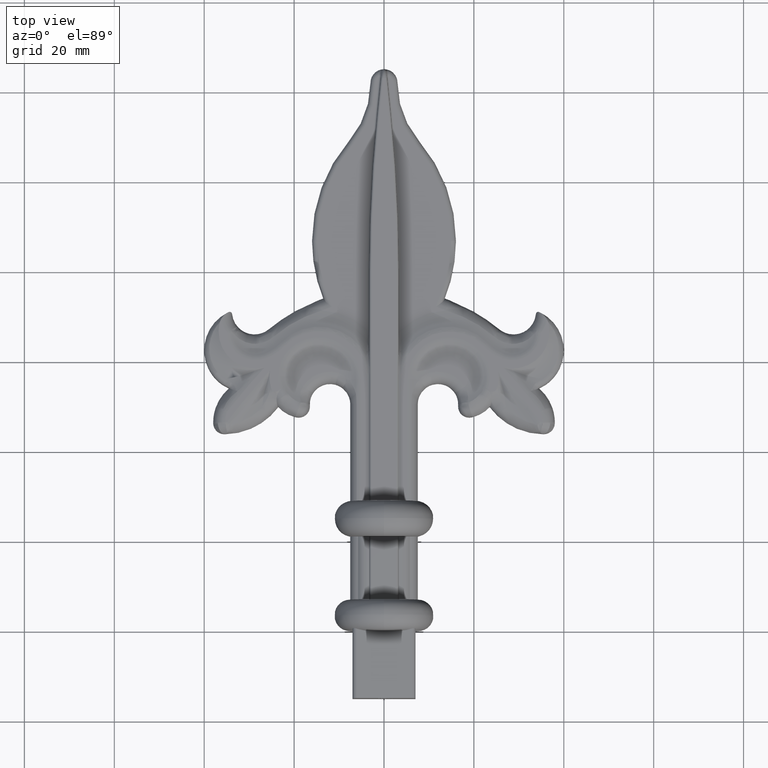
[diagram: clean part render]
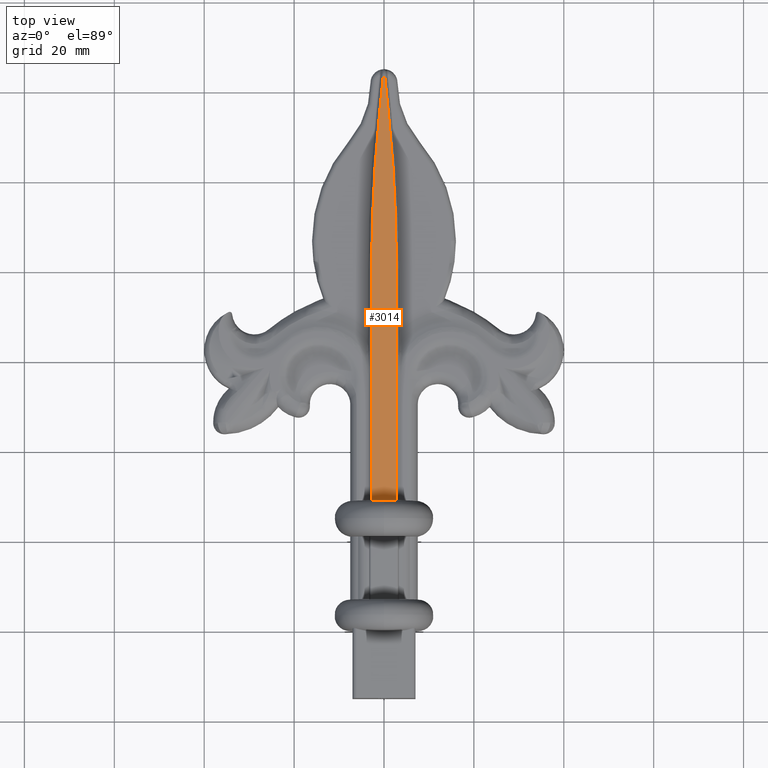
[diagram: same view with one face highlighted and labeled with its STEP entity id]
A machine part, top view. The second image highlights one B-rep face of the part: STEP entity #3014.
In plain terms, the highlighted planar face has unit normal (0, 0, 1).
Its self-contained STEP definition (entity closure, byte-faithful):
#135 = DIRECTION ( 'NONE',  ( 0.09981191532845422321, 0.9950063223711019811, 0.000000000000000000 ) ) ;
#317 = DIRECTION ( 'NONE',  ( 0.000000000000000000, 0.000000000000000000, 1.000000000000000000 ) ) ;
#789 = DIRECTION ( 'NONE',  ( -0.09981191532845422321, 0.9950063223711019811, 0.000000000000000000 ) ) ;
#1095 = DIRECTION ( 'NONE',  ( -1.000000000000000000, 0.000000000000000000, 0.000000000000000000 ) ) ;
#1248 = AXIS2_PLACEMENT_3D ( 'NONE', #18350, #12167, #1095 ) ;
#1324 = ORIENTED_EDGE ( 'NONE', *, *, #28687, .T. ) ;
#1903 = EDGE_CURVE ( 'NONE', #6429, #21993, #15595, .T. ) ;
#2247 = ORIENTED_EDGE ( 'NONE', *, *, #12657, .T. ) ;
#2476 = LINE ( 'NONE', #23284, #27558 ) ;
#2721 = FACE_OUTER_BOUND ( 'NONE', #12496, .T. ) ;
#3014 = ADVANCED_FACE ( 'NONE', ( #2721 ), #24623, .T. ) ;
#3017 = CARTESIAN_POINT ( 'NONE',  ( -0.1958383187995045849, 122.9807466314520212, 5.000000000000000888 ) ) ;
#3048 = CARTESIAN_POINT ( 'NONE',  ( 0.2304507295558823610, 122.6357042169481986, 5.000000000000000000 ) ) ;
#3820 = B_SPLINE_CURVE_WITH_KNOTS ( 'NONE', 3,
 ( #26889, #20332, #7009, #11483 ),
 .UNSPECIFIED., .F., .F.,
 ( 4, 4 ),
 ( 0.7593153901365838898, 1.000000000000000000 ),
 .UNSPECIFIED. ) ;
#4140 = ORIENTED_EDGE ( 'NONE', *, *, #19401, .T. ) ;
#4197 = VERTEX_POINT ( 'NONE', #23011 ) ;
#4381 = VECTOR ( 'NONE', #7377, 1000.000000000000000 ) ;
#5082 = AXIS2_PLACEMENT_3D ( 'NONE', #13505, #317, #15476 ) ;
#5440 = CARTESIAN_POINT ( 'NONE',  ( 0.000000000000000000, 122.9999890824078506, 5.000000000000000000 ) ) ;
#5603 = EDGE_CURVE ( 'NONE', #7667, #28474, #2476, .T. ) ;
#5804 = LINE ( 'NONE', #25201, #4381 ) ;
#6429 = VERTEX_POINT ( 'NONE', #27719 ) ;
#6644 = ORIENTED_EDGE ( 'NONE', *, *, #5603, .F. ) ;
#6693 = VECTOR ( 'NONE', #22706, 1000.000000000000000 ) ;
#7009 = CARTESIAN_POINT ( 'NONE',  ( 0.06684896866851157415, 122.9999567602996962, 5.000000000000000000 ) ) ;
#7133 = CARTESIAN_POINT ( 'NONE',  ( 0.000000000000000000, 29.00000000000000000, 5.000000000000000000 ) ) ;
#7377 = DIRECTION ( 'NONE',  ( 1.188166764367675911E-17, 1.000000000000000000, -0.000000000000000000 ) ) ;
#7667 = VERTEX_POINT ( 'NONE', #9362 ) ;
#8878 = EDGE_CURVE ( 'NONE', #14607, #18451, #3820, .T. ) ;
#9362 = CARTESIAN_POINT ( 'NONE',  ( -2.749999999999975575, 29.00000000000000000, 5.000000000000000000 ) ) ;
#9637 = DIRECTION ( 'NONE',  ( -1.188166764367675911E-17, 1.000000000000000000, 0.000000000000000000 ) ) ;
#10838 = ORIENTED_EDGE ( 'NONE', *, *, #17387, .F. ) ;
#11260 = CARTESIAN_POINT ( 'NONE',  ( 1.145786434690479240E-53, 122.0000000000000000, 5.000000000000000000 ) ) ;
#11340 = B_SPLINE_CURVE_WITH_KNOTS ( 'NONE', 3,
 ( #3017, #27330, #22917, #13944 ),
 .UNSPECIFIED., .F., .F.,
 ( 4, 4 ),
 ( 0.7582882186065450503, 1.000000000000000000 ),
 .UNSPECIFIED. ) ;
#11483 = CARTESIAN_POINT ( 'NONE',  ( 0.000000000000000000, 122.9999890824078506, 5.000000000000000000 ) ) ;
#12117 = ORIENTED_EDGE ( 'NONE', *, *, #26255, .T. ) ;
#12167 = DIRECTION ( 'NONE',  ( -0.000000000000000000, -0.000000000000000000, -1.000000000000000000 ) ) ;
#12496 = EDGE_LOOP ( 'NONE', ( #12117, #1324, #27835, #10838, #19268, #23221, #6644, #2247, #4140 ) ) ;
#12636 = LINE ( 'NONE', #7133, #6693 ) ;
#12657 = EDGE_CURVE ( 'NONE', #7667, #13359, #12636, .T. ) ;
#13147 = CIRCLE ( 'NONE', #5082, 350.1595368381056801 ) ;
#13359 = VERTEX_POINT ( 'NONE', #23021 ) ;
#13505 = CARTESIAN_POINT ( 'NONE',  ( -347.4095368381057369, 80.00000000000000000, 5.000000000000000000 ) ) ;
#13944 = CARTESIAN_POINT ( 'NONE',  ( 0.000000000000000000, 122.9999890824078506, 5.000000000000000888 ) ) ;
#14607 = VERTEX_POINT ( 'NONE', #15674 ) ;
#15476 = DIRECTION ( 'NONE',  ( 1.000000000000000000, 0.000000000000000000, 0.000000000000000000 ) ) ;
#15595 = LINE ( 'NONE', #22671, #24659 ) ;
#15674 = CARTESIAN_POINT ( 'NONE',  ( 0.1958383187995045849, 122.9807466314520212, 5.000000000000000000 ) ) ;
#17387 = EDGE_CURVE ( 'NONE', #21993, #18451, #11340, .T. ) ;
#18350 = CARTESIAN_POINT ( 'NONE',  ( 347.4095368381057369, 80.00000000000000000, 5.000000000000000000 ) ) ;
#18451 = VERTEX_POINT ( 'NONE', #5440 ) ;
#19268 = ORIENTED_EDGE ( 'NONE', *, *, #1903, .F. ) ;
#19284 = CARTESIAN_POINT ( 'NONE',  ( -0.1958383187995045849, 122.9807466314520212, 5.000000000000000000 ) ) ;
#19354 = LINE ( 'NONE', #3048, #28806 ) ;
#19401 = EDGE_CURVE ( 'NONE', #13359, #27847, #5804, .T. ) ;
#19933 = CARTESIAN_POINT ( 'NONE',  ( -2.749999999999976019, 80.00000000000004263, 5.000000000000000000 ) ) ;
#20332 = CARTESIAN_POINT ( 'NONE',  ( 0.1321420226886201033, 122.9936108293076131, 5.000000000000000000 ) ) ;
#20846 = EDGE_CURVE ( 'NONE', #28474, #6429, #21413, .T. ) ;
#21413 = CIRCLE ( 'NONE', #1248, 350.1595368381056801 ) ;
#21993 = VERTEX_POINT ( 'NONE', #19284 ) ;
#22671 = CARTESIAN_POINT ( 'NONE',  ( -0.2304507295558823610, 122.6357042169481986, 5.000000000000000000 ) ) ;
#22706 = DIRECTION ( 'NONE',  ( 1.000000000000000000, 0.000000000000000000, 0.000000000000000000 ) ) ;
#22917 = CARTESIAN_POINT ( 'NONE',  ( -0.06570243381757459589, 122.9999573146637317, 5.000000000000000888 ) ) ;
#22945 = DIRECTION ( 'NONE',  ( 1.000000000000000000, 0.000000000000000000, -0.000000000000000000 ) ) ;
#23011 = CARTESIAN_POINT ( 'NONE',  ( 1.001416154346232767, 114.9500940423357775, 5.000000000000000000 ) ) ;
#23021 = CARTESIAN_POINT ( 'NONE',  ( 2.749999999999975575, 29.00000000000000000, 5.000000000000000000 ) ) ;
#23221 = ORIENTED_EDGE ( 'NONE', *, *, #20846, .F. ) ;
#23284 = CARTESIAN_POINT ( 'NONE',  ( -2.749999999999976019, 80.00000000000004263, 5.000000000000000000 ) ) ;
#24623 = PLANE ( 'NONE',  #28213 ) ;
#24659 = VECTOR ( 'NONE', #135, 1000.000000000000114 ) ;
#25201 = CARTESIAN_POINT ( 'NONE',  ( 2.749999999999976019, 80.00000000000004263, 5.000000000000000000 ) ) ;
#26255 = EDGE_CURVE ( 'NONE', #27847, #4197, #13147, .T. ) ;
#26869 = DIRECTION ( 'NONE',  ( 0.000000000000000000, 0.000000000000000000, 1.000000000000000000 ) ) ;
#26889 = CARTESIAN_POINT ( 'NONE',  ( 0.1958383187995045849, 122.9807466314520212, 5.000000000000000000 ) ) ;
#27330 = CARTESIAN_POINT ( 'NONE',  ( -0.1313804285707133590, 122.9933975955205341, 5.000000000000000888 ) ) ;
#27558 = VECTOR ( 'NONE', #9637, 1000.000000000000000 ) ;
#27719 = CARTESIAN_POINT ( 'NONE',  ( -1.001416154346232767, 114.9500940423357775, 5.000000000000000000 ) ) ;
#27835 = ORIENTED_EDGE ( 'NONE', *, *, #8878, .T. ) ;
#27840 = CARTESIAN_POINT ( 'NONE',  ( 2.749999999999976019, 80.00000000000004263, 5.000000000000000000 ) ) ;
#27847 = VERTEX_POINT ( 'NONE', #27840 ) ;
#28213 = AXIS2_PLACEMENT_3D ( 'NONE', #11260, #26869, #22945 ) ;
#28474 = VERTEX_POINT ( 'NONE', #19933 ) ;
#28687 = EDGE_CURVE ( 'NONE', #4197, #14607, #19354, .T. ) ;
#28806 = VECTOR ( 'NONE', #789, 1000.000000000000114 ) ;